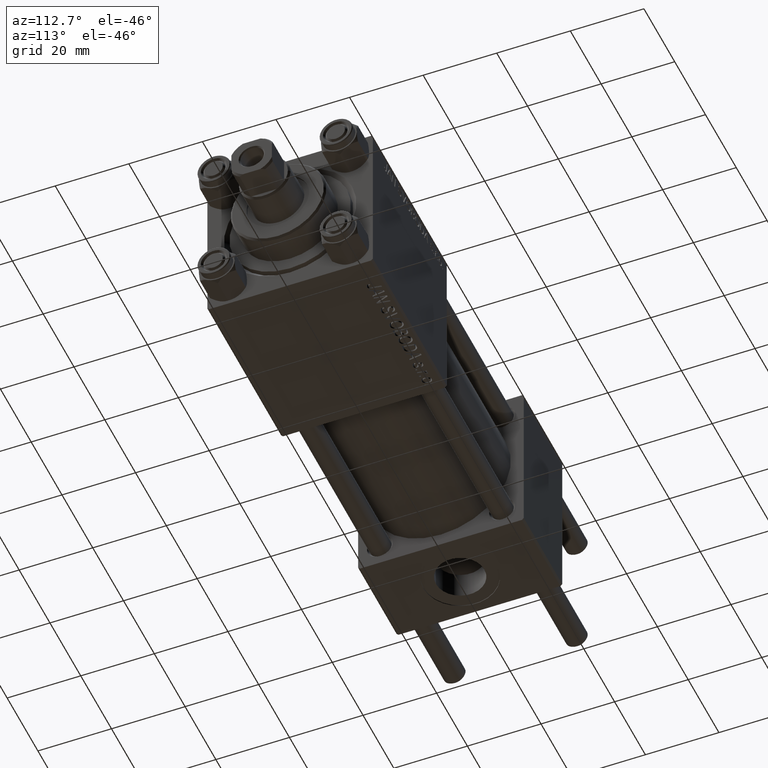
[diagram: clean part render]
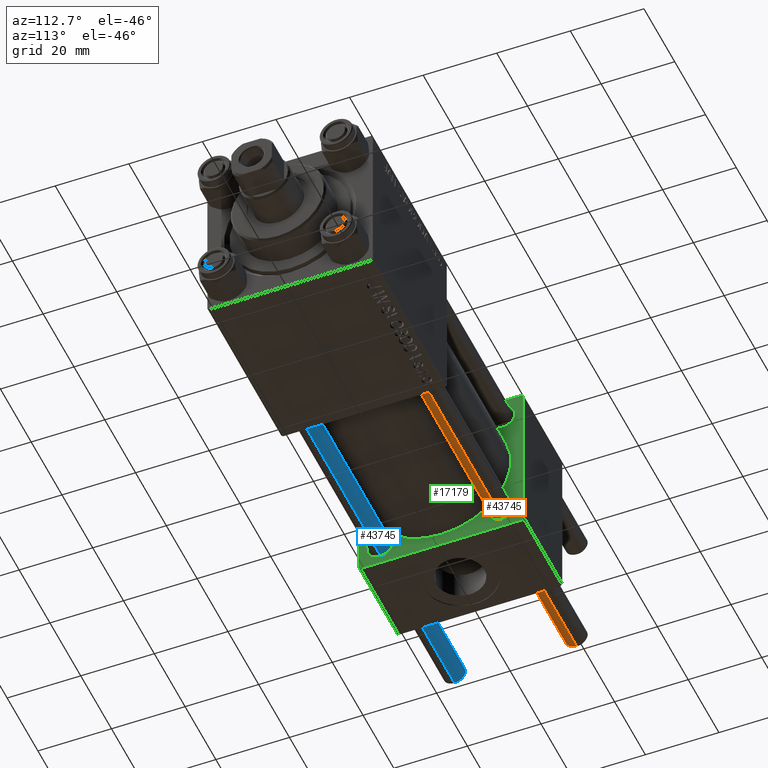
[diagram: same view with three faces highlighted in distinct colors, each labeled with its STEP entity id]
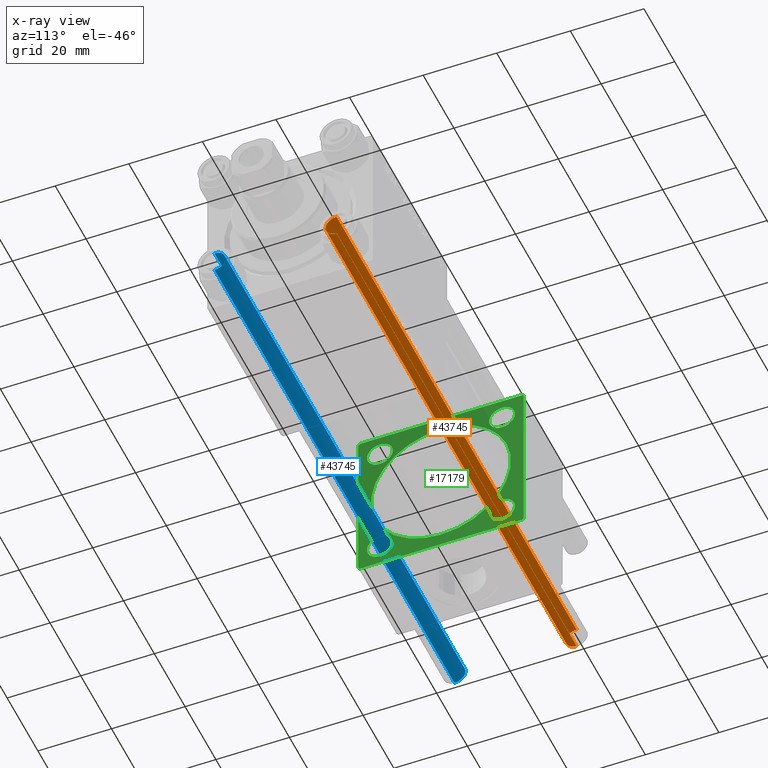
[diagram: x-ray of the same camera — body ghosted, the three highlighted faces saturated]
A machine part, auxiliary view with three faces highlighted in distinct colors.
The next image is the same camera in x-ray (body ghosted, the three faces saturated) — at least one of them is partly hidden behind the body in this view.
Their STEP definitions:

[orange] entity #43745 — the highlighted cylindrical surface (edge-blend (fillet) strip) has radius 3 mm, axis along (1, 0, -0).
#549 = FACE_OUTER_BOUND ( 'NONE', #45343, .T. ) ;
#1451 = CARTESIAN_POINT ( 'NONE',  ( 3.000000000000000444, 3.673940397442060361E-16, 157.0000000000000000 ) ) ;
#1506 = VECTOR ( 'NONE', #15834, 1000.000000000000000 ) ;
#3750 = EDGE_CURVE ( 'NONE', #3773, #46481, #40091, .T. ) ;
#3773 = VERTEX_POINT ( 'NONE', #18153 ) ;
#6974 = EDGE_CURVE ( 'NONE', #38689, #42343, #27151, .T. ) ;
#7899 = EDGE_CURVE ( 'NONE', #38689, #3773, #36921, .T. ) ;
#9327 = DIRECTION ( 'NONE',  ( 1.000000000000000000, 0.000000000000000000, 0.000000000000000000 ) ) ;
#11182 = DIRECTION ( 'NONE',  ( 1.000000000000000000, 0.000000000000000000, 0.000000000000000000 ) ) ;
#14108 = DIRECTION ( 'NONE',  ( -0.000000000000000000, -0.000000000000000000, -1.000000000000000000 ) ) ;
#14645 = AXIS2_PLACEMENT_3D ( 'NONE', #27247, #30285, #27493 ) ;
#14952 = EDGE_CURVE ( 'NONE', #46481, #42343, #42791, .T. ) ;
#15209 = AXIS2_PLACEMENT_3D ( 'NONE', #16901, #47632, #9327 ) ;
#15834 = DIRECTION ( 'NONE',  ( -0.000000000000000000, -0.000000000000000000, -1.000000000000000000 ) ) ;
#16273 = CARTESIAN_POINT ( 'NONE',  ( 3.000000000000000444, 3.673940397442060361E-16, 156.5000000000000284 ) ) ;
#16901 = CARTESIAN_POINT ( 'NONE',  ( 0.000000000000000000, 0.000000000000000000, 156.5000000000000284 ) ) ;
#17831 = AXIS2_PLACEMENT_3D ( 'NONE', #26044, #44689, #11182 ) ;
#18153 = CARTESIAN_POINT ( 'NONE',  ( -3.000000000000000444, 0.000000000000000000, 156.5000000000000284 ) ) ;
#18535 = ORIENTED_EDGE ( 'NONE', *, *, #14952, .T. ) ;
#22392 = ORIENTED_EDGE ( 'NONE', *, *, #3750, .T. ) ;
#24389 = CARTESIAN_POINT ( 'NONE',  ( 3.000000000000000444, 3.673940397442060361E-16, 0.4999999999999726885 ) ) ;
#26044 = CARTESIAN_POINT ( 'NONE',  ( 0.000000000000000000, 0.000000000000000000, 0.4999999999999726885 ) ) ;
#27151 = LINE ( 'NONE', #1451, #1506 ) ;
#27247 = CARTESIAN_POINT ( 'NONE',  ( 0.000000000000000000, 0.000000000000000000, 157.0000000000000000 ) ) ;
#27493 = DIRECTION ( 'NONE',  ( -1.000000000000000000, 0.000000000000000000, 0.000000000000000000 ) ) ;
#30285 = DIRECTION ( 'NONE',  ( -0.000000000000000000, -0.000000000000000000, -1.000000000000000000 ) ) ;
#32001 = ORIENTED_EDGE ( 'NONE', *, *, #6974, .F. ) ;
#32744 = CARTESIAN_POINT ( 'NONE',  ( -3.000000000000000444, 0.000000000000000000, 157.0000000000000000 ) ) ;
#32938 = ORIENTED_EDGE ( 'NONE', *, *, #7899, .T. ) ;
#33211 = CARTESIAN_POINT ( 'NONE',  ( -3.000000000000000444, 0.000000000000000000, 0.4999999999999726885 ) ) ;
#34316 = CYLINDRICAL_SURFACE ( 'NONE', #14645, 3.000000000000000444 ) ;
#36921 = CIRCLE ( 'NONE', #15209, 3.000000000000000444 ) ;
#38689 = VERTEX_POINT ( 'NONE', #16273 ) ;
#40091 = LINE ( 'NONE', #32744, #40934 ) ;
#40934 = VECTOR ( 'NONE', #14108, 1000.000000000000000 ) ;
#42343 = VERTEX_POINT ( 'NONE', #24389 ) ;
#42791 = CIRCLE ( 'NONE', #17831, 3.000000000000000444 ) ;
#43745 = ADVANCED_FACE ( 'NONE', ( #549 ), #34316, .T. ) ;
#44689 = DIRECTION ( 'NONE',  ( -0.000000000000000000, -0.000000000000000000, 1.000000000000000000 ) ) ;
#45343 = EDGE_LOOP ( 'NONE', ( #32001, #32938, #22392, #18535 ) ) ;
#46481 = VERTEX_POINT ( 'NONE', #33211 ) ;
#47632 = DIRECTION ( 'NONE',  ( 0.000000000000000000, 0.000000000000000000, -1.000000000000000000 ) ) ;

[blue] entity #43745 — the highlighted cylindrical surface (edge-blend (fillet) strip) has radius 3 mm, axis along (-1, 0, 0).
#549 = FACE_OUTER_BOUND ( 'NONE', #45343, .T. ) ;
#1451 = CARTESIAN_POINT ( 'NONE',  ( 3.000000000000000444, 3.673940397442060361E-16, 157.0000000000000000 ) ) ;
#1506 = VECTOR ( 'NONE', #15834, 1000.000000000000000 ) ;
#3750 = EDGE_CURVE ( 'NONE', #3773, #46481, #40091, .T. ) ;
#3773 = VERTEX_POINT ( 'NONE', #18153 ) ;
#6974 = EDGE_CURVE ( 'NONE', #38689, #42343, #27151, .T. ) ;
#7899 = EDGE_CURVE ( 'NONE', #38689, #3773, #36921, .T. ) ;
#9327 = DIRECTION ( 'NONE',  ( 1.000000000000000000, 0.000000000000000000, 0.000000000000000000 ) ) ;
#11182 = DIRECTION ( 'NONE',  ( 1.000000000000000000, 0.000000000000000000, 0.000000000000000000 ) ) ;
#14108 = DIRECTION ( 'NONE',  ( -0.000000000000000000, -0.000000000000000000, -1.000000000000000000 ) ) ;
#14645 = AXIS2_PLACEMENT_3D ( 'NONE', #27247, #30285, #27493 ) ;
#14952 = EDGE_CURVE ( 'NONE', #46481, #42343, #42791, .T. ) ;
#15209 = AXIS2_PLACEMENT_3D ( 'NONE', #16901, #47632, #9327 ) ;
#15834 = DIRECTION ( 'NONE',  ( -0.000000000000000000, -0.000000000000000000, -1.000000000000000000 ) ) ;
#16273 = CARTESIAN_POINT ( 'NONE',  ( 3.000000000000000444, 3.673940397442060361E-16, 156.5000000000000284 ) ) ;
#16901 = CARTESIAN_POINT ( 'NONE',  ( 0.000000000000000000, 0.000000000000000000, 156.5000000000000284 ) ) ;
#17831 = AXIS2_PLACEMENT_3D ( 'NONE', #26044, #44689, #11182 ) ;
#18153 = CARTESIAN_POINT ( 'NONE',  ( -3.000000000000000444, 0.000000000000000000, 156.5000000000000284 ) ) ;
#18535 = ORIENTED_EDGE ( 'NONE', *, *, #14952, .T. ) ;
#22392 = ORIENTED_EDGE ( 'NONE', *, *, #3750, .T. ) ;
#24389 = CARTESIAN_POINT ( 'NONE',  ( 3.000000000000000444, 3.673940397442060361E-16, 0.4999999999999726885 ) ) ;
#26044 = CARTESIAN_POINT ( 'NONE',  ( 0.000000000000000000, 0.000000000000000000, 0.4999999999999726885 ) ) ;
#27151 = LINE ( 'NONE', #1451, #1506 ) ;
#27247 = CARTESIAN_POINT ( 'NONE',  ( 0.000000000000000000, 0.000000000000000000, 157.0000000000000000 ) ) ;
#27493 = DIRECTION ( 'NONE',  ( -1.000000000000000000, 0.000000000000000000, 0.000000000000000000 ) ) ;
#30285 = DIRECTION ( 'NONE',  ( -0.000000000000000000, -0.000000000000000000, -1.000000000000000000 ) ) ;
#32001 = ORIENTED_EDGE ( 'NONE', *, *, #6974, .F. ) ;
#32744 = CARTESIAN_POINT ( 'NONE',  ( -3.000000000000000444, 0.000000000000000000, 157.0000000000000000 ) ) ;
#32938 = ORIENTED_EDGE ( 'NONE', *, *, #7899, .T. ) ;
#33211 = CARTESIAN_POINT ( 'NONE',  ( -3.000000000000000444, 0.000000000000000000, 0.4999999999999726885 ) ) ;
#34316 = CYLINDRICAL_SURFACE ( 'NONE', #14645, 3.000000000000000444 ) ;
#36921 = CIRCLE ( 'NONE', #15209, 3.000000000000000444 ) ;
#38689 = VERTEX_POINT ( 'NONE', #16273 ) ;
#40091 = LINE ( 'NONE', #32744, #40934 ) ;
#40934 = VECTOR ( 'NONE', #14108, 1000.000000000000000 ) ;
#42343 = VERTEX_POINT ( 'NONE', #24389 ) ;
#42791 = CIRCLE ( 'NONE', #17831, 3.000000000000000444 ) ;
#43745 = ADVANCED_FACE ( 'NONE', ( #549 ), #34316, .T. ) ;
#44689 = DIRECTION ( 'NONE',  ( -0.000000000000000000, -0.000000000000000000, 1.000000000000000000 ) ) ;
#45343 = EDGE_LOOP ( 'NONE', ( #32001, #32938, #22392, #18535 ) ) ;
#46481 = VERTEX_POINT ( 'NONE', #33211 ) ;
#47632 = DIRECTION ( 'NONE',  ( 0.000000000000000000, 0.000000000000000000, -1.000000000000000000 ) ) ;

[green] entity #17179 — the highlighted planar face has unit normal (-1, 0, 0).
#1384 = CARTESIAN_POINT ( 'NONE',  ( 25.00000000000000000, 22.50000000000000000, 22.50000000000000355 ) ) ;
#1768 = EDGE_CURVE ( 'NONE', #7393, #37188, #17892, .T. ) ;
#1953 = AXIS2_PLACEMENT_3D ( 'NONE', #44584, #6537, #22433 ) ;
#2753 = PLANE ( 'NONE',  #1953 ) ;
#2887 = EDGE_CURVE ( 'NONE', #7908, #29652, #39342, .T. ) ;
#3039 = EDGE_LOOP ( 'NONE', ( #38999, #42872 ) ) ;
#4419 = DIRECTION ( 'NONE',  ( -1.000000000000000000, 0.000000000000000000, -0.000000000000000000 ) ) ;
#4845 = AXIS2_PLACEMENT_3D ( 'NONE', #37941, #37429, #30343 ) ;
#5288 = AXIS2_PLACEMENT_3D ( 'NONE', #28743, #13876, #9860 ) ;
#5458 = EDGE_CURVE ( 'NONE', #28323, #23120, #15143, .T. ) ;
#5492 = EDGE_CURVE ( 'NONE', #25166, #15117, #39179, .T. ) ;
#6006 = EDGE_CURVE ( 'NONE', #37188, #23614, #41298, .T. ) ;
#6284 = CARTESIAN_POINT ( 'NONE',  ( 25.00000000000000000, -16.59999999999999076, 13.10000000000001386 ) ) ;
#6421 = EDGE_CURVE ( 'NONE', #45155, #34618, #12249, .T. ) ;
#6494 = ORIENTED_EDGE ( 'NONE', *, *, #16949, .F. ) ;
#6512 = CIRCLE ( 'NONE', #37934, 3.499999999999989342 ) ;
#6537 = DIRECTION ( 'NONE',  ( -1.000000000000000000, 0.000000000000000000, -0.000000000000000000 ) ) ;
#6637 = LINE ( 'NONE', #7624, #22687 ) ;
#6647 = CARTESIAN_POINT ( 'NONE',  ( 25.00000000000000000, 22.50000000000000000, 21.99999999999999645 ) ) ;
#6884 = AXIS2_PLACEMENT_3D ( 'NONE', #11345, #26925, #11092 ) ;
#6980 = DIRECTION ( 'NONE',  ( 0.000000000000000000, 0.000000000000000000, 1.000000000000000000 ) ) ;
#7034 = FACE_BOUND ( 'NONE', #22236, .T. ) ;
#7393 = VERTEX_POINT ( 'NONE', #27035 ) ;
#7624 = CARTESIAN_POINT ( 'NONE',  ( 25.00000000000000000, 22.50000000000000000, 22.50000000000000355 ) ) ;
#7888 = VECTOR ( 'NONE', #45840, 1000.000000000000000 ) ;
#7908 = VERTEX_POINT ( 'NONE', #21181 ) ;
#8194 = CARTESIAN_POINT ( 'NONE',  ( 25.00000000000000000, 22.50000000000000000, -21.99999999999998224 ) ) ;
#8319 = DIRECTION ( 'NONE',  ( 0.000000000000000000, 0.000000000000000000, 1.000000000000000000 ) ) ;
#8424 = DIRECTION ( 'NONE',  ( 0.000000000000000000, 0.000000000000000000, 1.000000000000000000 ) ) ;
#8531 = ORIENTED_EDGE ( 'NONE', *, *, #11777, .T. ) ;
#8695 = CIRCLE ( 'NONE', #36875, 3.500000000000003109 ) ;
#8876 = CIRCLE ( 'NONE', #30608, 3.499999999999989342 ) ;
#9411 = CARTESIAN_POINT ( 'NONE',  ( 25.00000000000000000, 16.59999999999999787, 13.10000000000000142 ) ) ;
#9449 = DIRECTION ( 'NONE',  ( 0.000000000000000000, 0.000000000000000000, 1.000000000000000000 ) ) ;
#9860 = DIRECTION ( 'NONE',  ( 0.000000000000000000, 0.000000000000000000, 1.000000000000000000 ) ) ;
#10305 = EDGE_CURVE ( 'NONE', #29652, #7908, #41830, .T. ) ;
#10580 = DIRECTION ( 'NONE',  ( -0.000000000000000000, -0.7071067811865525687, -0.7071067811865425767 ) ) ;
#11092 = DIRECTION ( 'NONE',  ( 0.000000000000000000, 0.000000000000000000, 1.000000000000000000 ) ) ;
#11129 = DIRECTION ( 'NONE',  ( -1.000000000000000000, 0.000000000000000000, -0.000000000000000000 ) ) ;
#11345 = CARTESIAN_POINT ( 'NONE',  ( 25.00000000000000000, 16.59999999999999787, -16.60000000000000497 ) ) ;
#11777 = EDGE_CURVE ( 'NONE', #23120, #28323, #12118, .T. ) ;
#12118 = CIRCLE ( 'NONE', #4845, 3.499999999999992895 ) ;
#12176 = CARTESIAN_POINT ( 'NONE',  ( 25.00000000000000000, 22.50000000000000000, -21.99999999999996803 ) ) ;
#12249 = LINE ( 'NONE', #1384, #23232 ) ;
#12261 = CARTESIAN_POINT ( 'NONE',  ( 25.00000000000000000, -21.99999999999997158, -22.50000000000000711 ) ) ;
#12499 = EDGE_LOOP ( 'NONE', ( #8531, #46082 ) ) ;
#13059 = DIRECTION ( 'NONE',  ( 0.000000000000000000, 0.000000000000000000, 1.000000000000000000 ) ) ;
#13557 = DIRECTION ( 'NONE',  ( -1.000000000000000000, 0.000000000000000000, -0.000000000000000000 ) ) ;
#13876 = DIRECTION ( 'NONE',  ( -1.000000000000000000, 0.000000000000000000, -0.000000000000000000 ) ) ;
#14081 = FACE_BOUND ( 'NONE', #17194, .T. ) ;
#14458 = CIRCLE ( 'NONE', #24218, 3.500000000000003109 ) ;
#14611 = DIRECTION ( 'NONE',  ( 0.000000000000000000, -0.7071067811865474617, 0.7071067811865474617 ) ) ;
#15117 = VERTEX_POINT ( 'NONE', #12176 ) ;
#15143 = CIRCLE ( 'NONE', #44914, 3.499999999999992895 ) ;
#15859 = ORIENTED_EDGE ( 'NONE', *, *, #37219, .T. ) ;
#16221 = ORIENTED_EDGE ( 'NONE', *, *, #6006, .T. ) ;
#16949 = EDGE_CURVE ( 'NONE', #25166, #23614, #27033, .T. ) ;
#17179 = ADVANCED_FACE ( 'NONE', ( #7034, #25680, #18387, #14081, #48863, #41062 ), #2753, .F. ) ;
#17194 = EDGE_LOOP ( 'NONE', ( #19959, #15859 ) ) ;
#17892 = LINE ( 'NONE', #33229, #45718 ) ;
#18038 = DIRECTION ( 'NONE',  ( -1.000000000000000000, 0.000000000000000000, -0.000000000000000000 ) ) ;
#18387 = FACE_BOUND ( 'NONE', #12499, .T. ) ;
#18565 = ORIENTED_EDGE ( 'NONE', *, *, #21001, .T. ) ;
#19137 = CARTESIAN_POINT ( 'NONE',  ( 25.00000000000000000, -21.99999999999997868, 22.50000000000000000 ) ) ;
#19434 = CARTESIAN_POINT ( 'NONE',  ( 25.00000000000000000, -22.50000000000000000, -21.99999999999997158 ) ) ;
#19455 = VERTEX_POINT ( 'NONE', #43607 ) ;
#19471 = VERTEX_POINT ( 'NONE', #20426 ) ;
#19562 = EDGE_CURVE ( 'NONE', #46823, #45155, #26195, .T. ) ;
#19568 = EDGE_CURVE ( 'NONE', #26266, #37269, #23760, .T. ) ;
#19959 = ORIENTED_EDGE ( 'NONE', *, *, #31272, .T. ) ;
#20426 = CARTESIAN_POINT ( 'NONE',  ( 25.00000000000000000, -16.59999999999999076, -13.10000000000001741 ) ) ;
#21001 = EDGE_CURVE ( 'NONE', #37269, #26266, #40694, .T. ) ;
#21181 = CARTESIAN_POINT ( 'NONE',  ( 25.00000000000000000, 2.326828918379970970E-15, -19.00000000000000000 ) ) ;
#21545 = DIRECTION ( 'NONE',  ( 1.000000000000000000, -0.000000000000000000, 0.000000000000000000 ) ) ;
#21869 = EDGE_LOOP ( 'NONE', ( #6494, #30039, #27665, #42039, #37617, #37322, #44776, #16221 ) ) ;
#22236 = EDGE_LOOP ( 'NONE', ( #25466, #47788 ) ) ;
#22295 = DIRECTION ( 'NONE',  ( 0.000000000000000000, -1.000000000000000000, -2.312964634635742957E-16 ) ) ;
#22415 = CARTESIAN_POINT ( 'NONE',  ( 25.00000000000000000, -16.59999999999999076, 20.10000000000000142 ) ) ;
#22433 = DIRECTION ( 'NONE',  ( -0.000000000000000000, 0.000000000000000000, 1.000000000000000000 ) ) ;
#22588 = CARTESIAN_POINT ( 'NONE',  ( 25.00000000000000000, -16.59999999999999076, -16.60000000000000853 ) ) ;
#22687 = VECTOR ( 'NONE', #46682, 1000.000000000000000 ) ;
#23120 = VERTEX_POINT ( 'NONE', #6284 ) ;
#23232 = VECTOR ( 'NONE', #24815, 1000.000000000000000 ) ;
#23614 = VERTEX_POINT ( 'NONE', #12261 ) ;
#23760 = CIRCLE ( 'NONE', #6884, 3.500000000000003109 ) ;
#24218 = AXIS2_PLACEMENT_3D ( 'NONE', #34036, #11129, #8319 ) ;
#24476 = VERTEX_POINT ( 'NONE', #48005 ) ;
#24815 = DIRECTION ( 'NONE',  ( 0.000000000000000000, -1.000000000000000000, -7.709882115452476934E-17 ) ) ;
#25071 = CARTESIAN_POINT ( 'NONE',  ( 25.00000000000000000, 0.000000000000000000, 0.000000000000000000 ) ) ;
#25166 = VERTEX_POINT ( 'NONE', #40345 ) ;
#25466 = ORIENTED_EDGE ( 'NONE', *, *, #41415, .T. ) ;
#25680 = FACE_BOUND ( 'NONE', #37948, .T. ) ;
#26195 = LINE ( 'NONE', #42078, #39863 ) ;
#26266 = VERTEX_POINT ( 'NONE', #34693 ) ;
#26925 = DIRECTION ( 'NONE',  ( -1.000000000000000000, 0.000000000000000000, -0.000000000000000000 ) ) ;
#27033 = LINE ( 'NONE', #30082, #45420 ) ;
#27035 = CARTESIAN_POINT ( 'NONE',  ( 25.00000000000000000, -22.50000000000000000, 22.00000000000000000 ) ) ;
#27436 = VECTOR ( 'NONE', #10580, 999.9999999999998863 ) ;
#27665 = ORIENTED_EDGE ( 'NONE', *, *, #41697, .F. ) ;
#28323 = VERTEX_POINT ( 'NONE', #22415 ) ;
#28743 = CARTESIAN_POINT ( 'NONE',  ( 25.00000000000000000, 16.59999999999999787, -16.60000000000000497 ) ) ;
#29652 = VERTEX_POINT ( 'NONE', #31113 ) ;
#29869 = DIRECTION ( 'NONE',  ( 0.000000000000000000, 0.000000000000000000, 1.000000000000000000 ) ) ;
#29953 = CARTESIAN_POINT ( 'NONE',  ( 25.00000000000000000, -21.99999999999998579, -22.50000000000000711 ) ) ;
#30039 = ORIENTED_EDGE ( 'NONE', *, *, #5492, .T. ) ;
#30082 = CARTESIAN_POINT ( 'NONE',  ( 25.00000000000000000, 22.50000000000000000, -22.49999999999999645 ) ) ;
#30343 = DIRECTION ( 'NONE',  ( 0.000000000000000000, 0.000000000000000000, 1.000000000000000000 ) ) ;
#30608 = AXIS2_PLACEMENT_3D ( 'NONE', #36990, #13557, #13059 ) ;
#31113 = CARTESIAN_POINT ( 'NONE',  ( 25.00000000000000000, 0.000000000000000000, 19.00000000000000000 ) ) ;
#31272 = EDGE_CURVE ( 'NONE', #44373, #19455, #8695, .T. ) ;
#31462 = ORIENTED_EDGE ( 'NONE', *, *, #19568, .T. ) ;
#32920 = CARTESIAN_POINT ( 'NONE',  ( 25.00000000000000000, 0.000000000000000000, 0.000000000000000000 ) ) ;
#33229 = CARTESIAN_POINT ( 'NONE',  ( 25.00000000000000000, -22.50000000000000000, 22.50000000000000000 ) ) ;
#34036 = CARTESIAN_POINT ( 'NONE',  ( 25.00000000000000000, 16.59999999999999787, 16.60000000000000497 ) ) ;
#34399 = CARTESIAN_POINT ( 'NONE',  ( 25.00000000000000000, -16.59999999999999076, 16.60000000000000853 ) ) ;
#34618 = VERTEX_POINT ( 'NONE', #19137 ) ;
#34693 = CARTESIAN_POINT ( 'NONE',  ( 25.00000000000000000, 16.59999999999999787, -20.10000000000000853 ) ) ;
#36071 = EDGE_CURVE ( 'NONE', #19471, #24476, #8876, .T. ) ;
#36875 = AXIS2_PLACEMENT_3D ( 'NONE', #39196, #4419, #42975 ) ;
#36990 = CARTESIAN_POINT ( 'NONE',  ( 25.00000000000000000, -16.59999999999999076, -16.60000000000000853 ) ) ;
#37188 = VERTEX_POINT ( 'NONE', #19434 ) ;
#37219 = EDGE_CURVE ( 'NONE', #19455, #44373, #14458, .T. ) ;
#37269 = VERTEX_POINT ( 'NONE', #39807 ) ;
#37322 = ORIENTED_EDGE ( 'NONE', *, *, #37476, .T. ) ;
#37429 = DIRECTION ( 'NONE',  ( -1.000000000000000000, 0.000000000000000000, -0.000000000000000000 ) ) ;
#37476 = EDGE_CURVE ( 'NONE', #34618, #7393, #41059, .T. ) ;
#37617 = ORIENTED_EDGE ( 'NONE', *, *, #6421, .T. ) ;
#37934 = AXIS2_PLACEMENT_3D ( 'NONE', #22588, #18038, #29869 ) ;
#37941 = CARTESIAN_POINT ( 'NONE',  ( 25.00000000000000000, -16.59999999999999076, 16.60000000000000853 ) ) ;
#37948 = EDGE_LOOP ( 'NONE', ( #31462, #18565 ) ) ;
#38617 = CARTESIAN_POINT ( 'NONE',  ( 25.00000000000000000, 21.99999999999999289, 22.50000000000000355 ) ) ;
#38934 = DIRECTION ( 'NONE',  ( -0.000000000000000000, 0.7071067811865426878, 0.7071067811865524577 ) ) ;
#38999 = ORIENTED_EDGE ( 'NONE', *, *, #10305, .F. ) ;
#39179 = LINE ( 'NONE', #8194, #48940 ) ;
#39196 = CARTESIAN_POINT ( 'NONE',  ( 25.00000000000000000, 16.59999999999999787, 16.60000000000000497 ) ) ;
#39342 = CIRCLE ( 'NONE', #43334, 19.00000000000000000 ) ;
#39807 = CARTESIAN_POINT ( 'NONE',  ( 25.00000000000000000, 16.59999999999999787, -13.10000000000000142 ) ) ;
#39863 = VECTOR ( 'NONE', #14611, 1000.000000000000114 ) ;
#40345 = CARTESIAN_POINT ( 'NONE',  ( 25.00000000000000000, 21.99999999999999289, -22.49999999999999645 ) ) ;
#40694 = CIRCLE ( 'NONE', #5288, 3.500000000000003109 ) ;
#41059 = LINE ( 'NONE', #45086, #27436 ) ;
#41062 = FACE_OUTER_BOUND ( 'NONE', #21869, .T. ) ;
#41298 = LINE ( 'NONE', #29953, #7888 ) ;
#41415 = EDGE_CURVE ( 'NONE', #24476, #19471, #6512, .T. ) ;
#41697 = EDGE_CURVE ( 'NONE', #46823, #15117, #6637, .T. ) ;
#41830 = CIRCLE ( 'NONE', #45058, 19.00000000000000000 ) ;
#42039 = ORIENTED_EDGE ( 'NONE', *, *, #19562, .T. ) ;
#42078 = CARTESIAN_POINT ( 'NONE',  ( 25.00000000000000000, 21.99999999999999289, 22.50000000000000355 ) ) ;
#42872 = ORIENTED_EDGE ( 'NONE', *, *, #2887, .F. ) ;
#42975 = DIRECTION ( 'NONE',  ( 0.000000000000000000, 0.000000000000000000, 1.000000000000000000 ) ) ;
#43334 = AXIS2_PLACEMENT_3D ( 'NONE', #32920, #48310, #6980 ) ;
#43607 = CARTESIAN_POINT ( 'NONE',  ( 25.00000000000000000, 16.59999999999999787, 20.10000000000000853 ) ) ;
#44373 = VERTEX_POINT ( 'NONE', #9411 ) ;
#44584 = CARTESIAN_POINT ( 'NONE',  ( 25.00000000000000000, 0.000000000000000000, 0.000000000000000000 ) ) ;
#44776 = ORIENTED_EDGE ( 'NONE', *, *, #1768, .T. ) ;
#44914 = AXIS2_PLACEMENT_3D ( 'NONE', #34399, #49785, #8424 ) ;
#45058 = AXIS2_PLACEMENT_3D ( 'NONE', #25071, #21545, #9449 ) ;
#45086 = CARTESIAN_POINT ( 'NONE',  ( 25.00000000000000000, -22.50000000000000000, 22.00000000000000000 ) ) ;
#45155 = VERTEX_POINT ( 'NONE', #38617 ) ;
#45420 = VECTOR ( 'NONE', #22295, 1000.000000000000000 ) ;
#45718 = VECTOR ( 'NONE', #48603, 1000.000000000000000 ) ;
#45840 = DIRECTION ( 'NONE',  ( 0.000000000000000000, 0.7071067811865426878, -0.7071067811865524577 ) ) ;
#46082 = ORIENTED_EDGE ( 'NONE', *, *, #5458, .T. ) ;
#46682 = DIRECTION ( 'NONE',  ( 0.000000000000000000, 0.000000000000000000, -1.000000000000000000 ) ) ;
#46823 = VERTEX_POINT ( 'NONE', #6647 ) ;
#47788 = ORIENTED_EDGE ( 'NONE', *, *, #36071, .T. ) ;
#48005 = CARTESIAN_POINT ( 'NONE',  ( 25.00000000000000000, -16.59999999999999076, -20.09999999999999787 ) ) ;
#48310 = DIRECTION ( 'NONE',  ( 1.000000000000000000, -0.000000000000000000, 0.000000000000000000 ) ) ;
#48603 = DIRECTION ( 'NONE',  ( 0.000000000000000000, 0.000000000000000000, -1.000000000000000000 ) ) ;
#48863 = FACE_BOUND ( 'NONE', #3039, .T. ) ;
#48940 = VECTOR ( 'NONE', #38934, 1000.000000000000000 ) ;
#49785 = DIRECTION ( 'NONE',  ( -1.000000000000000000, 0.000000000000000000, -0.000000000000000000 ) ) ;